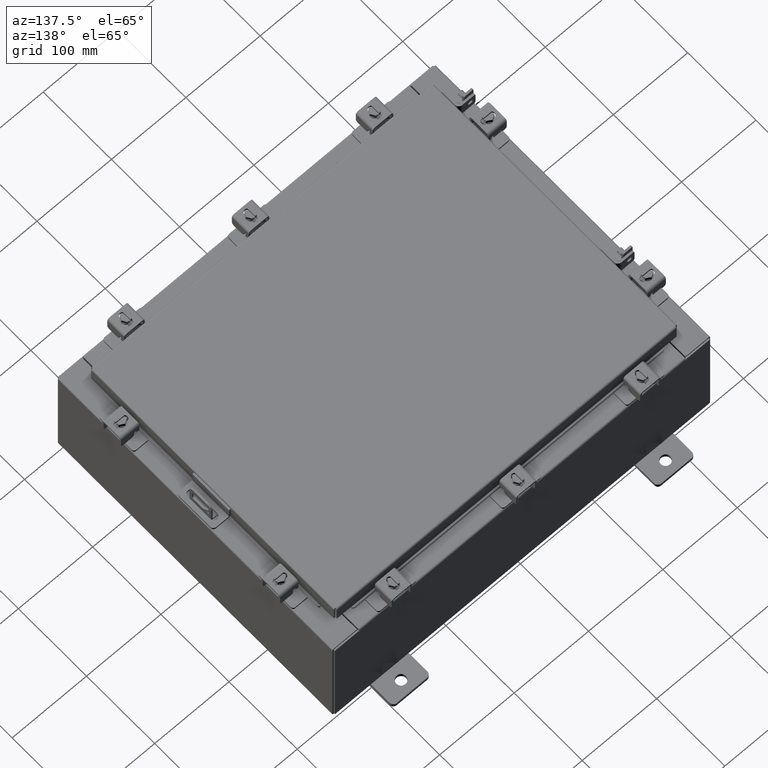
[diagram: clean part render]
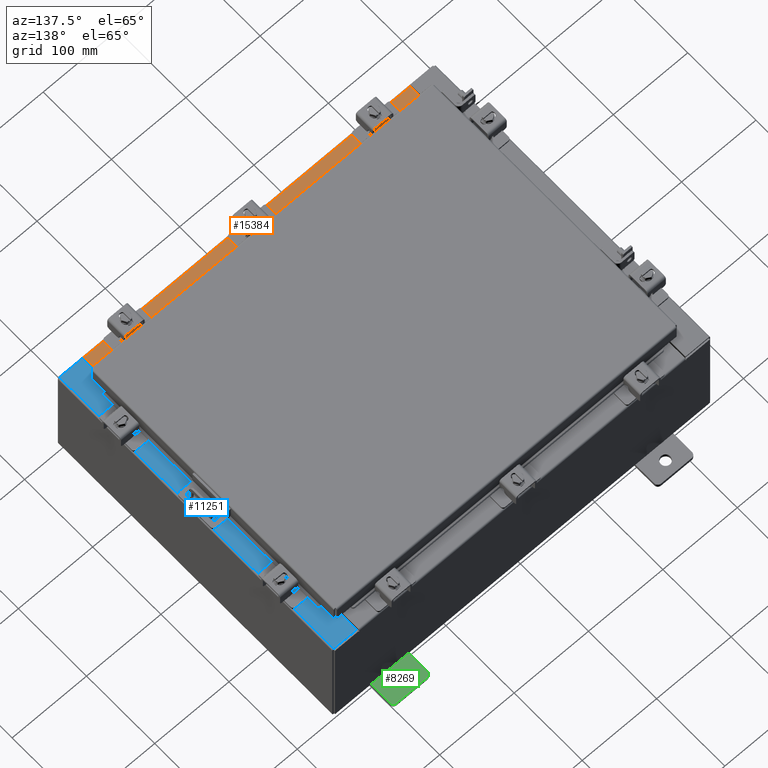
[diagram: same view with three faces highlighted in distinct colors, each labeled with its STEP entity id]
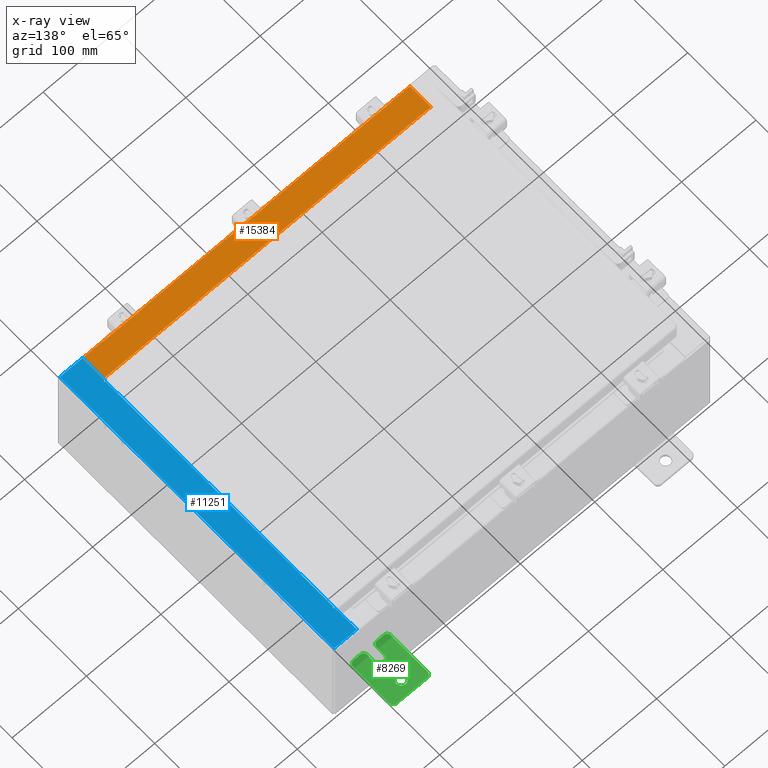
[diagram: x-ray of the same camera — body ghosted, the three highlighted faces saturated]
A machine part, auxiliary view with three faces highlighted in distinct colors.
The next image is the same camera in x-ray (body ghosted, the three faces saturated) — at least one of them is partly hidden behind the body in this view.
Their STEP definitions:

[orange] entity #15384 — the highlighted planar face has unit normal (-0, -0, 1).
#48 = LINE ( 'NONE', #16602, #16758 ) ;
#797 = VECTOR ( 'NONE', #15488, 39.37007874015748100 ) ;
#1387 = CARTESIAN_POINT ( 'NONE',  ( 8.637200000000000000, -1.300299999999999800, 3.000000000000005300 ) ) ;
#2095 = CARTESIAN_POINT ( 'NONE',  ( 8.637200000000000000, -1.287299999999999900, 3.000000000000005300 ) ) ;
#2882 = DIRECTION ( 'NONE',  ( 0.0000000000000000000, -1.000000000000000000, 3.566381192773190000E-015 ) ) ;
#3214 = ORIENTED_EDGE ( 'NONE', *, *, #4841, .F. ) ;
#3896 = CARTESIAN_POINT ( 'NONE',  ( 8.637200000000000000, -1.287299999999999900, 3.000000000000005300 ) ) ;
#4841 = EDGE_CURVE ( 'NONE', #17946, #7874, #4953, .T. ) ;
#4953 = LINE ( 'NONE', #1387, #797 ) ;
#5481 = DIRECTION ( 'NONE',  ( -1.000000000000000000, 0.0000000000000000000, 0.0000000000000000000 ) ) ;
#5600 = DIRECTION ( 'NONE',  ( -0.0000000000000000000, 1.000000000000000000, -3.566381192773190000E-015 ) ) ;
#5668 = VERTEX_POINT ( 'NONE', #10085 ) ;
#6180 = ORIENTED_EDGE ( 'NONE', *, *, #19631, .F. ) ;
#7874 = VERTEX_POINT ( 'NONE', #2095 ) ;
#7973 = EDGE_CURVE ( 'NONE', #17946, #11255, #9383, .T. ) ;
#8038 = VECTOR ( 'NONE', #5481, 39.37007874015748100 ) ;
#9383 = LINE ( 'NONE', #19596, #13561 ) ;
#10085 = CARTESIAN_POINT ( 'NONE',  ( -8.637200000000000000, -1.287299999999999200, 3.000000000000005300 ) ) ;
#10148 = DIRECTION ( 'NONE',  ( -1.000000000000000000, 3.162886113166609200E-017, -1.128005754888089100E-031 ) ) ;
#10791 = EDGE_LOOP ( 'NONE', ( #6180, #18004, #3214, #15085 ) ) ;
#11255 = VERTEX_POINT ( 'NONE', #15696 ) ;
#12258 = DIRECTION ( 'NONE',  ( 0.0000000000000000000, 3.566381192773190000E-015, 1.000000000000000000 ) ) ;
#12463 = EDGE_CURVE ( 'NONE', #7874, #5668, #17408, .T. ) ;
#13561 = VECTOR ( 'NONE', #10148, 39.37007874015748100 ) ;
#14986 = CARTESIAN_POINT ( 'NONE',  ( 8.637200000000000000, -0.08769999999999965300, 3.000000000000000900 ) ) ;
#15085 = ORIENTED_EDGE ( 'NONE', *, *, #7973, .T. ) ;
#15384 = ADVANCED_FACE ( 'NONE', ( #19758 ), #16947, .T. ) ;
#15488 = DIRECTION ( 'NONE',  ( -0.0000000000000000000, -1.000000000000000000, 3.566381192773190000E-015 ) ) ;
#15696 = CARTESIAN_POINT ( 'NONE',  ( -8.637200000000000000, -0.08770000000000000000, 3.000000000000000900 ) ) ;
#16602 = CARTESIAN_POINT ( 'NONE',  ( -8.637200000000000000, -0.07469999999999973900, 3.000000000000000900 ) ) ;
#16758 = VECTOR ( 'NONE', #5600, 39.37007874015748100 ) ;
#16947 = PLANE ( 'NONE',  #18465 ) ;
#17408 = LINE ( 'NONE', #3896, #8038 ) ;
#17946 = VERTEX_POINT ( 'NONE', #14986 ) ;
#18004 = ORIENTED_EDGE ( 'NONE', *, *, #12463, .F. ) ;
#18465 = AXIS2_PLACEMENT_3D ( 'NONE', #18555, #12258, #2882 ) ;
#18555 = CARTESIAN_POINT ( 'NONE',  ( 0.0000000000000000000, 1.069354855923099900E-014, 3.000000000000000900 ) ) ;
#19596 = CARTESIAN_POINT ( 'NONE',  ( -2.773851121247453900E-018, -0.08770000000000000000, 3.000000000000001300 ) ) ;
#19631 = EDGE_CURVE ( 'NONE', #5668, #11255, #48, .T. ) ;
#19758 = FACE_OUTER_BOUND ( 'NONE', #10791, .T. ) ;

[blue] entity #11251 — the highlighted planar face has unit normal (-0, 0, -1).
#390 = CARTESIAN_POINT ( 'NONE',  ( 9.912300000000019700, -7.925300000000000000, 5.925300000000001800 ) ) ;
#825 = ORIENTED_EDGE ( 'NONE', *, *, #1931, .F. ) ;
#1015 = CARTESIAN_POINT ( 'NONE',  ( 8.699700000000019500, 7.925300000000000000, 5.925300000000009800 ) ) ;
#1738 = AXIS2_PLACEMENT_3D ( 'NONE', #15791, #6398, #17382 ) ;
#1807 = CARTESIAN_POINT ( 'NONE',  ( 8.699700000000019500, -7.925300000000000900, 5.925300000000009800 ) ) ;
#1931 = EDGE_CURVE ( 'NONE', #12565, #3551, #8575, .T. ) ;
#2402 = VECTOR ( 'NONE', #15368, 39.37007874015748100 ) ;
#2822 = ORIENTED_EDGE ( 'NONE', *, *, #6764, .F. ) ;
#3064 = CARTESIAN_POINT ( 'NONE',  ( 8.750050000000021200, 6.593749999999999100, 5.925300000000009800 ) ) ;
#3110 = LINE ( 'NONE', #7553, #19326 ) ;
#3281 = CARTESIAN_POINT ( 'NONE',  ( 4.959073083586140300E-014, -7.925300000000008900, 5.925300000000072800 ) ) ;
#3360 = EDGE_LOOP ( 'NONE', ( #5927, #9369, #7102, #2822, #6788, #18088, #825, #5047, #4313, #15936, #15888, #4566 ) ) ;
#3367 = LINE ( 'NONE', #16964, #2402 ) ;
#3551 = VERTEX_POINT ( 'NONE', #14170 ) ;
#3744 = CARTESIAN_POINT ( 'NONE',  ( 8.712700000000021200, -6.593750000000002700, 5.925300000000011600 ) ) ;
#4211 = VERTEX_POINT ( 'NONE', #1015 ) ;
#4313 = ORIENTED_EDGE ( 'NONE', *, *, #13407, .F. ) ;
#4418 = LINE ( 'NONE', #3281, #16941 ) ;
#4523 = CARTESIAN_POINT ( 'NONE',  ( 8.712700000000021200, -6.593750000000000900, 5.925300000000011600 ) ) ;
#4566 = ORIENTED_EDGE ( 'NONE', *, *, #14072, .F. ) ;
#4682 = PLANE ( 'NONE',  #14540 ) ;
#4847 = DIRECTION ( 'NONE',  ( 1.000000000000000000, 8.915952981932975000E-016, -7.132762385546378400E-015 ) ) ;
#4896 = FACE_OUTER_BOUND ( 'NONE', #3360, .T. ) ;
#4975 = CARTESIAN_POINT ( 'NONE',  ( 8.750050000000021200, -6.612425000000000900, 5.925300000000011600 ) ) ;
#5037 = CARTESIAN_POINT ( 'NONE',  ( 8.750050000000021200, -6.593750000000000900, 5.925300000000011600 ) ) ;
#5047 = ORIENTED_EDGE ( 'NONE', *, *, #14518, .F. ) ;
#5461 = EDGE_CURVE ( 'NONE', #4211, #3551, #17220, .T. ) ;
#5927 = ORIENTED_EDGE ( 'NONE', *, *, #13912, .F. ) ;
#6022 = VECTOR ( 'NONE', #9741, 39.37007874015748100 ) ;
#6060 = EDGE_CURVE ( 'NONE', #7327, #18300, #4418, .T. ) ;
#6250 = DIRECTION ( 'NONE',  ( -1.000000000000000000, 0.0000000000000000000, 7.132762385546378400E-015 ) ) ;
#6398 = DIRECTION ( 'NONE',  ( 7.132762385546378400E-015, 0.0000000000000000000, 1.000000000000000000 ) ) ;
#6539 = DIRECTION ( 'NONE',  ( 1.000000000000000000, 0.0000000000000000000, 0.0000000000000000000 ) ) ;
#6688 = EDGE_CURVE ( 'NONE', #15476, #19839, #10167, .T. ) ;
#6764 = EDGE_CURVE ( 'NONE', #18280, #18300, #13370, .T. ) ;
#6788 = ORIENTED_EDGE ( 'NONE', *, *, #17153, .T. ) ;
#6873 = DIRECTION ( 'NONE',  ( -0.0000000000000000000, 1.000000000000000000, -0.0000000000000000000 ) ) ;
#7102 = ORIENTED_EDGE ( 'NONE', *, *, #6060, .T. ) ;
#7327 = VERTEX_POINT ( 'NONE', #1807 ) ;
#7553 = CARTESIAN_POINT ( 'NONE',  ( 8.699700000000019500, -6.631100000000002700, 5.925300000000009800 ) ) ;
#7747 = LINE ( 'NONE', #15831, #19345 ) ;
#7766 = CARTESIAN_POINT ( 'NONE',  ( 8.750050000000021200, -6.593750000000000900, 5.925300000000009800 ) ) ;
#8281 = DIRECTION ( 'NONE',  ( -0.0000000000000000000, -1.000000000000000000, -0.0000000000000000000 ) ) ;
#8467 = VECTOR ( 'NONE', #9795, 39.37007874015748100 ) ;
#8575 = LINE ( 'NONE', #17825, #15458 ) ;
#9369 = ORIENTED_EDGE ( 'NONE', *, *, #13236, .T. ) ;
#9444 = CIRCLE ( 'NONE', #1738, 0.01867500000000058700 ) ;
#9669 = VECTOR ( 'NONE', #8281, 39.37007874015748100 ) ;
#9741 = DIRECTION ( 'NONE',  ( -1.000000000000000000, 0.0000000000000000000, 0.0000000000000000000 ) ) ;
#9795 = DIRECTION ( 'NONE',  ( -1.000000000000000000, 0.0000000000000000000, 7.132762385546378400E-015 ) ) ;
#10167 = LINE ( 'NONE', #5037, #6022 ) ;
#10528 = VERTEX_POINT ( 'NONE', #3064 ) ;
#10989 = VERTEX_POINT ( 'NONE', #14946 ) ;
#11251 = ADVANCED_FACE ( 'NONE', ( #4896 ), #4682, .F. ) ;
#11418 = DIRECTION ( 'NONE',  ( -1.000000000000000000, 0.0000000000000000000, -2.170286390199955400E-014 ) ) ;
#12565 = VERTEX_POINT ( 'NONE', #13365 ) ;
#12586 = DIRECTION ( 'NONE',  ( 0.0000000000000000000, -1.000000000000000000, 0.0000000000000000000 ) ) ;
#12654 = LINE ( 'NONE', #12964, #8467 ) ;
#12964 = CARTESIAN_POINT ( 'NONE',  ( 4.252457061909005100E-014, 7.925300000000000000, 5.925300000000072800 ) ) ;
#13147 = CIRCLE ( 'NONE', #18710, 0.01867500000000058700 ) ;
#13236 = EDGE_CURVE ( 'NONE', #10989, #7327, #3367, .T. ) ;
#13365 = CARTESIAN_POINT ( 'NONE',  ( 8.750050000000021200, 6.631100000000000000, 5.925300000000009800 ) ) ;
#13370 = LINE ( 'NONE', #16135, #9669 ) ;
#13407 = EDGE_CURVE ( 'NONE', #19798, #10528, #7747, .T. ) ;
#13829 = CARTESIAN_POINT ( 'NONE',  ( 8.712700000000021200, 6.593750000000000000, 5.925300000000011600 ) ) ;
#13912 = EDGE_CURVE ( 'NONE', #10989, #19640, #3110, .T. ) ;
#14072 = EDGE_CURVE ( 'NONE', #19640, #15476, #13147, .T. ) ;
#14170 = CARTESIAN_POINT ( 'NONE',  ( 8.699700000000019500, 6.631099999999999100, 5.925300000000009800 ) ) ;
#14496 = CARTESIAN_POINT ( 'NONE',  ( 9.912300000000019700, 7.925300000000000000, 5.925300000000001800 ) ) ;
#14518 = EDGE_CURVE ( 'NONE', #10528, #12565, #9444, .T. ) ;
#14540 = AXIS2_PLACEMENT_3D ( 'NONE', #20353, #15630, #6250 ) ;
#14946 = CARTESIAN_POINT ( 'NONE',  ( 8.699700000000019500, -6.631100000000002700, 5.925300000000009800 ) ) ;
#15368 = DIRECTION ( 'NONE',  ( 0.0000000000000000000, -1.000000000000000000, 0.0000000000000000000 ) ) ;
#15458 = VECTOR ( 'NONE', #11418, 39.37007874015748100 ) ;
#15476 = VERTEX_POINT ( 'NONE', #7766 ) ;
#15630 = DIRECTION ( 'NONE',  ( -7.132762385546378400E-015, 0.0000000000000000000, -1.000000000000000000 ) ) ;
#15728 = CARTESIAN_POINT ( 'NONE',  ( 8.699700000000019500, 0.0000000000000000000, 5.925300000000009800 ) ) ;
#15791 = CARTESIAN_POINT ( 'NONE',  ( 8.750050000000021200, 6.612425000000000000, 5.925300000000011600 ) ) ;
#15831 = CARTESIAN_POINT ( 'NONE',  ( 8.712700000000021200, 6.593750000000000000, 5.925300000000011600 ) ) ;
#15888 = ORIENTED_EDGE ( 'NONE', *, *, #6688, .F. ) ;
#15928 = DIRECTION ( 'NONE',  ( 7.132762385546378400E-015, 0.0000000000000000000, 1.000000000000000000 ) ) ;
#15936 = ORIENTED_EDGE ( 'NONE', *, *, #16583, .F. ) ;
#16135 = CARTESIAN_POINT ( 'NONE',  ( 9.912300000000019700, -7.925300000000000000, 5.925300000000001800 ) ) ;
#16583 = EDGE_CURVE ( 'NONE', #19839, #19798, #18855, .T. ) ;
#16941 = VECTOR ( 'NONE', #4847, 39.37007874015748100 ) ;
#16964 = CARTESIAN_POINT ( 'NONE',  ( 8.699700000000019500, 0.0000000000000000000, 5.925300000000009800 ) ) ;
#17081 = DIRECTION ( 'NONE',  ( 1.000000000000000000, 2.170286390199955400E-014, 2.170286390199955400E-014 ) ) ;
#17153 = EDGE_CURVE ( 'NONE', #18280, #4211, #12654, .T. ) ;
#17220 = LINE ( 'NONE', #15728, #17710 ) ;
#17382 = DIRECTION ( 'NONE',  ( 1.000000000000000000, 0.0000000000000000000, 0.0000000000000000000 ) ) ;
#17416 = DIRECTION ( 'NONE',  ( 1.000000000000000000, 0.0000000000000000000, 0.0000000000000000000 ) ) ;
#17710 = VECTOR ( 'NONE', #12586, 39.37007874015748100 ) ;
#17825 = CARTESIAN_POINT ( 'NONE',  ( 8.750050000000021200, 6.631100000000000000, 5.925300000000011600 ) ) ;
#18088 = ORIENTED_EDGE ( 'NONE', *, *, #5461, .T. ) ;
#18183 = CARTESIAN_POINT ( 'NONE',  ( 8.750050000000021200, -6.631100000000000000, 5.925300000000009800 ) ) ;
#18280 = VERTEX_POINT ( 'NONE', #14496 ) ;
#18300 = VERTEX_POINT ( 'NONE', #390 ) ;
#18372 = VECTOR ( 'NONE', #6873, 39.37007874015748100 ) ;
#18710 = AXIS2_PLACEMENT_3D ( 'NONE', #4975, #15928, #6539 ) ;
#18855 = LINE ( 'NONE', #3744, #18372 ) ;
#19326 = VECTOR ( 'NONE', #17081, 39.37007874015748100 ) ;
#19345 = VECTOR ( 'NONE', #17416, 39.37007874015748100 ) ;
#19640 = VERTEX_POINT ( 'NONE', #18183 ) ;
#19798 = VERTEX_POINT ( 'NONE', #13829 ) ;
#19839 = VERTEX_POINT ( 'NONE', #4523 ) ;
#20353 = CARTESIAN_POINT ( 'NONE',  ( 4.252457061909005100E-014, 0.0000000000000000000, 5.925300000000072800 ) ) ;

[green] entity #8269 — the highlighted planar face has unit normal (0, 0, 1).
#347 = VERTEX_POINT ( 'NONE', #16632 ) ;
#418 = CARTESIAN_POINT ( 'NONE',  ( 0.0000000000000000000, 1.249999999999994200, -1.000000000000010400 ) ) ;
#478 = CIRCLE ( 'NONE', #15153, 0.2499999999999999200 ) ;
#540 = CARTESIAN_POINT ( 'NONE',  ( 0.0000000000000000000, -1.250000000000003100, 0.4400000000000020000 ) ) ;
#709 = DIRECTION ( 'NONE',  ( 0.0000000000000000000, 0.0000000000000000000, -1.000000000000000000 ) ) ;
#749 = ORIENTED_EDGE ( 'NONE', *, *, #2899, .T. ) ;
#840 = VERTEX_POINT ( 'NONE', #9257 ) ;
#1028 = EDGE_CURVE ( 'NONE', #1824, #840, #1240, .T. ) ;
#1116 = EDGE_CURVE ( 'NONE', #5923, #20027, #11279, .T. ) ;
#1240 = LINE ( 'NONE', #5263, #17431 ) ;
#1301 = DIRECTION ( 'NONE',  ( -5.163192708025533800E-017, 0.0000000000000000000, -1.000000000000000000 ) ) ;
#1318 = EDGE_CURVE ( 'NONE', #840, #5693, #478, .T. ) ;
#1512 = VERTEX_POINT ( 'NONE', #10180 ) ;
#1728 = DIRECTION ( 'NONE',  ( 1.000000000000000000, 0.0000000000000000000, -0.0000000000000000000 ) ) ;
#1824 = VERTEX_POINT ( 'NONE', #13052 ) ;
#2009 = CARTESIAN_POINT ( 'NONE',  ( 0.0000000000000000000, -1.060000000000003400, -0.4400000000000005000 ) ) ;
#2049 = AXIS2_PLACEMENT_3D ( 'NONE', #9507, #1728, #12681 ) ;
#2146 = AXIS2_PLACEMENT_3D ( 'NONE', #17036, #7575, #18627 ) ;
#2180 = VECTOR ( 'NONE', #5830, 39.37007874015748100 ) ;
#2322 = DIRECTION ( 'NONE',  ( 0.0000000000000000000, -1.000000000000000000, 1.639108796198558100E-015 ) ) ;
#2476 = VERTEX_POINT ( 'NONE', #13802 ) ;
#2514 = ORIENTED_EDGE ( 'NONE', *, *, #1318, .T. ) ;
#2528 = VECTOR ( 'NONE', #2322, 39.37007874015748100 ) ;
#2899 = EDGE_CURVE ( 'NONE', #17527, #347, #18874, .T. ) ;
#3055 = CIRCLE ( 'NONE', #4263, 0.2499999999999999200 ) ;
#3564 = DIRECTION ( 'NONE',  ( 0.0000000000000000000, 0.0000000000000000000, -1.000000000000000000 ) ) ;
#3760 = CARTESIAN_POINT ( 'NONE',  ( 0.0000000000000000000, 1.059999999999996300, 0.8099999999999938400 ) ) ;
#3802 = EDGE_CURVE ( 'NONE', #16024, #2476, #7154, .T. ) ;
#4042 = CARTESIAN_POINT ( 'NONE',  ( 4.780733988912460100E-016, -0.6249999999999993300, -0.2499999999999993900 ) ) ;
#4057 = EDGE_CURVE ( 'NONE', #14913, #20018, #4950, .T. ) ;
#4263 = AXIS2_PLACEMENT_3D ( 'NONE', #20117, #10688, #1301 ) ;
#4286 = ORIENTED_EDGE ( 'NONE', *, *, #9435, .T. ) ;
#4541 = ORIENTED_EDGE ( 'NONE', *, *, #3802, .T. ) ;
#4908 = ORIENTED_EDGE ( 'NONE', *, *, #9956, .T. ) ;
#4950 = CIRCLE ( 'NONE', #7206, 0.1900000000000011100 ) ;
#5136 = ORIENTED_EDGE ( 'NONE', *, *, #20241, .T. ) ;
#5263 = CARTESIAN_POINT ( 'NONE',  ( 6.829619984160658000E-017, -1.250000000000003800, 0.2500000000000005000 ) ) ;
#5323 = DIRECTION ( 'NONE',  ( 0.0000000000000000000, 0.0000000000000000000, -1.000000000000000000 ) ) ;
#5359 = CARTESIAN_POINT ( 'NONE',  ( 0.0000000000000000000, 1.249999999999997300, 0.8099999999999935000 ) ) ;
#5459 = FACE_BOUND ( 'NONE', #12533, .T. ) ;
#5693 = VERTEX_POINT ( 'NONE', #19541 ) ;
#5830 = DIRECTION ( 'NONE',  ( 0.0000000000000000000, -1.639108796198553600E-015, -1.000000000000000000 ) ) ;
#5923 = VERTEX_POINT ( 'NONE', #13709 ) ;
#6108 = CARTESIAN_POINT ( 'NONE',  ( 0.0000000000000000000, -1.250000000000002200, 0.9999999999999992200 ) ) ;
#6129 = DIRECTION ( 'NONE',  ( 1.000000000000000000, 0.0000000000000000000, -0.0000000000000000000 ) ) ;
#6847 = VERTEX_POINT ( 'NONE', #5359 ) ;
#6898 = CIRCLE ( 'NONE', #12955, 0.1900000000000011100 ) ;
#7025 = DIRECTION ( 'NONE',  ( -5.163192708025533800E-017, 0.0000000000000000000, -1.000000000000000000 ) ) ;
#7154 = LINE ( 'NONE', #11699, #2528 ) ;
#7206 = AXIS2_PLACEMENT_3D ( 'NONE', #15524, #6129, #17128 ) ;
#7209 = EDGE_LOOP ( 'NONE', ( #4541, #7994, #13989, #5136, #7574, #2514, #11051, #12018, #749, #7879, #4286, #8798, #4908, #17044 ) ) ;
#7422 = EDGE_CURVE ( 'NONE', #14451, #17527, #15050, .T. ) ;
#7574 = ORIENTED_EDGE ( 'NONE', *, *, #1028, .T. ) ;
#7575 = DIRECTION ( 'NONE',  ( 1.000000000000000000, 0.0000000000000000000, -0.0000000000000000000 ) ) ;
#7807 = CARTESIAN_POINT ( 'NONE',  ( 1.928684683526964400E-016, -1.060000000000003400, -0.2499999999999994400 ) ) ;
#7879 = ORIENTED_EDGE ( 'NONE', *, *, #13045, .T. ) ;
#7994 = ORIENTED_EDGE ( 'NONE', *, *, #17514, .T. ) ;
#8269 = ADVANCED_FACE ( 'NONE', ( #5459, #13305 ), #12622, .T. ) ;
#8272 = DIRECTION ( 'NONE',  ( 0.0000000000000000000, 1.639108796198553600E-015, 1.000000000000000000 ) ) ;
#8453 = DIRECTION ( 'NONE',  ( 1.000000000000000000, 0.0000000000000000000, -0.0000000000000000000 ) ) ;
#8798 = ORIENTED_EDGE ( 'NONE', *, *, #4057, .T. ) ;
#9257 = CARTESIAN_POINT ( 'NONE',  ( 0.0000000000000000000, -0.6249999999999992200, 0.2500000000000005000 ) ) ;
#9435 = EDGE_CURVE ( 'NONE', #18860, #14913, #12024, .T. ) ;
#9507 = CARTESIAN_POINT ( 'NONE',  ( 0.0000000000000000000, 0.0000000000000000000, 0.0000000000000000000 ) ) ;
#9880 = AXIS2_PLACEMENT_3D ( 'NONE', #2009, #12954, #3564 ) ;
#9956 = EDGE_CURVE ( 'NONE', #20018, #6847, #20231, .T. ) ;
#10063 = CIRCLE ( 'NONE', #15426, 0.1900000000000011400 ) ;
#10096 = DIRECTION ( 'NONE',  ( 1.000000000000000000, 0.0000000000000000000, -0.0000000000000000000 ) ) ;
#10153 = EDGE_CURVE ( 'NONE', #6847, #16024, #6898, .T. ) ;
#10180 = CARTESIAN_POINT ( 'NONE',  ( 0.0000000000000000000, -1.250000000000002400, 0.8099999999999980500 ) ) ;
#10614 = DIRECTION ( 'NONE',  ( -1.000000000000000000, 6.523827964459549700E-016, 5.163192708025532000E-017 ) ) ;
#10688 = DIRECTION ( 'NONE',  ( 1.000000000000000000, -0.0000000000000000000, -5.163192708025532000E-017 ) ) ;
#10845 = CARTESIAN_POINT ( 'NONE',  ( 0.0000000000000000000, 1.059999999999993400, -1.000000000000010000 ) ) ;
#10952 = DIRECTION ( 'NONE',  ( 1.000000000000000000, -0.0000000000000000000, -5.163192708025532000E-017 ) ) ;
#11051 = ORIENTED_EDGE ( 'NONE', *, *, #13735, .T. ) ;
#11078 = CARTESIAN_POINT ( 'NONE',  ( 0.0000000000000000000, 1.249999999999994700, -0.8100000000000092700 ) ) ;
#11279 = CIRCLE ( 'NONE', #19783, 0.2499999999999999200 ) ;
#11282 = VECTOR ( 'NONE', #12352, 39.37007874015748100 ) ;
#11461 = CIRCLE ( 'NONE', #18152, 0.1900000000000011100 ) ;
#11562 = CARTESIAN_POINT ( 'NONE',  ( 4.039428427013647300E-016, 0.6249999999999992200, -9.783840404509077400E-018 ) ) ;
#11699 = CARTESIAN_POINT ( 'NONE',  ( 0.0000000000000000000, 1.249999999999997600, 0.9999999999999951200 ) ) ;
#12018 = ORIENTED_EDGE ( 'NONE', *, *, #7422, .T. ) ;
#12024 = LINE ( 'NONE', #16144, #19418 ) ;
#12053 = EDGE_CURVE ( 'NONE', #1512, #13570, #19661, .T. ) ;
#12352 = DIRECTION ( 'NONE',  ( 0.0000000000000000000, -1.639108796198553600E-015, -1.000000000000000000 ) ) ;
#12533 = EDGE_LOOP ( 'NONE', ( #16480, #14224 ) ) ;
#12622 = PLANE ( 'NONE',  #2049 ) ;
#12681 = DIRECTION ( 'NONE',  ( -0.0000000000000000000, 0.0000000000000000000, -1.000000000000000000 ) ) ;
#12707 = CARTESIAN_POINT ( 'NONE',  ( 4.168508244714285900E-016, 0.6249999999999992200, 0.2499999999999999200 ) ) ;
#12954 = DIRECTION ( 'NONE',  ( 1.000000000000000000, 0.0000000000000000000, -0.0000000000000000000 ) ) ;
#12955 = AXIS2_PLACEMENT_3D ( 'NONE', #3760, #14707, #5323 ) ;
#13045 = EDGE_CURVE ( 'NONE', #347, #18860, #11461, .T. ) ;
#13052 = CARTESIAN_POINT ( 'NONE',  ( 1.928684683526972300E-016, -1.060000000000002100, 0.2500000000000005000 ) ) ;
#13055 = DIRECTION ( 'NONE',  ( 0.0000000000000000000, 1.000000000000000000, -1.639108796198558100E-015 ) ) ;
#13305 = FACE_OUTER_BOUND ( 'NONE', #7209, .T. ) ;
#13570 = VERTEX_POINT ( 'NONE', #540 ) ;
#13709 = CARTESIAN_POINT ( 'NONE',  ( 3.910348609313009100E-016, 0.6249999999999992200, -0.2499999999999999200 ) ) ;
#13735 = EDGE_CURVE ( 'NONE', #5693, #14451, #18615, .T. ) ;
#13802 = CARTESIAN_POINT ( 'NONE',  ( 0.0000000000000000000, -1.060000000000001200, 0.9999999999999988900 ) ) ;
#13989 = ORIENTED_EDGE ( 'NONE', *, *, #12053, .T. ) ;
#14111 = DIRECTION ( 'NONE',  ( -6.523827964459551700E-016, -1.000000000000000000, 0.0000000000000000000 ) ) ;
#14224 = ORIENTED_EDGE ( 'NONE', *, *, #16161, .F. ) ;
#14392 = VECTOR ( 'NONE', #19767, 39.37007874015748100 ) ;
#14451 = VERTEX_POINT ( 'NONE', #7807 ) ;
#14669 = CARTESIAN_POINT ( 'NONE',  ( 0.0000000000000000000, -1.060000000000004500, -1.000000000000006400 ) ) ;
#14707 = DIRECTION ( 'NONE',  ( 1.000000000000000000, 0.0000000000000000000, -0.0000000000000000000 ) ) ;
#14913 = VERTEX_POINT ( 'NONE', #10845 ) ;
#15050 = CIRCLE ( 'NONE', #9880, 0.1900000000000011100 ) ;
#15153 = AXIS2_PLACEMENT_3D ( 'NONE', #19578, #10614, #14111 ) ;
#15424 = CARTESIAN_POINT ( 'NONE',  ( 0.0000000000000000000, -1.250000000000004700, -0.4400000000000002200 ) ) ;
#15426 = AXIS2_PLACEMENT_3D ( 'NONE', #19549, #10096, #709 ) ;
#15524 = CARTESIAN_POINT ( 'NONE',  ( 0.0000000000000000000, 1.059999999999993600, -0.8100000000000089400 ) ) ;
#15998 = VECTOR ( 'NONE', #8272, 39.37007874015748100 ) ;
#16024 = VERTEX_POINT ( 'NONE', #18116 ) ;
#16144 = CARTESIAN_POINT ( 'NONE',  ( 0.0000000000000000000, -1.250000000000005600, -1.000000000000006200 ) ) ;
#16161 = EDGE_CURVE ( 'NONE', #20027, #5923, #3055, .T. ) ;
#16480 = ORIENTED_EDGE ( 'NONE', *, *, #1116, .F. ) ;
#16632 = CARTESIAN_POINT ( 'NONE',  ( 0.0000000000000000000, -1.250000000000005300, -0.8100000000000047200 ) ) ;
#17036 = CARTESIAN_POINT ( 'NONE',  ( 0.0000000000000000000, -1.060000000000001600, 0.8099999999999978300 ) ) ;
#17044 = ORIENTED_EDGE ( 'NONE', *, *, #10153, .T. ) ;
#17128 = DIRECTION ( 'NONE',  ( 0.0000000000000000000, 0.0000000000000000000, -1.000000000000000000 ) ) ;
#17431 = VECTOR ( 'NONE', #19365, 39.37007874015748100 ) ;
#17514 = EDGE_CURVE ( 'NONE', #2476, #1512, #19306, .T. ) ;
#17527 = VERTEX_POINT ( 'NONE', #15424 ) ;
#17888 = CARTESIAN_POINT ( 'NONE',  ( 0.0000000000000000000, -1.060000000000004100, -0.8100000000000050500 ) ) ;
#18116 = CARTESIAN_POINT ( 'NONE',  ( 0.0000000000000000000, 1.059999999999996500, 0.9999999999999953400 ) ) ;
#18152 = AXIS2_PLACEMENT_3D ( 'NONE', #17888, #8453, #19483 ) ;
#18417 = CARTESIAN_POINT ( 'NONE',  ( 0.0000000000000000000, -1.250000000000002200, 0.9999999999999992200 ) ) ;
#18615 = LINE ( 'NONE', #4042, #14392 ) ;
#18627 = DIRECTION ( 'NONE',  ( 0.0000000000000000000, 0.0000000000000000000, -1.000000000000000000 ) ) ;
#18860 = VERTEX_POINT ( 'NONE', #14669 ) ;
#18874 = LINE ( 'NONE', #18417, #2180 ) ;
#19306 = CIRCLE ( 'NONE', #2146, 0.1900000000000011100 ) ;
#19365 = DIRECTION ( 'NONE',  ( 6.556435184794182400E-016, 1.000000000000000000, 0.0000000000000000000 ) ) ;
#19418 = VECTOR ( 'NONE', #13055, 39.37007874015748100 ) ;
#19483 = DIRECTION ( 'NONE',  ( 0.0000000000000000000, 0.0000000000000000000, -1.000000000000000000 ) ) ;
#19541 = CARTESIAN_POINT ( 'NONE',  ( 4.780733988912460100E-016, -0.6249999999999993300, -0.2499999999999998600 ) ) ;
#19549 = CARTESIAN_POINT ( 'NONE',  ( 0.0000000000000000000, -1.060000000000002100, 0.4400000000000016700 ) ) ;
#19578 = CARTESIAN_POINT ( 'NONE',  ( 4.780733988912460100E-016, -0.6249999999999993300, 5.858939755051854500E-017 ) ) ;
#19661 = LINE ( 'NONE', #6108, #11282 ) ;
#19767 = DIRECTION ( 'NONE',  ( -6.556435184794182400E-016, -1.000000000000000000, -1.639108796198545600E-016 ) ) ;
#19783 = AXIS2_PLACEMENT_3D ( 'NONE', #11562, #10952, #7025 ) ;
#20018 = VERTEX_POINT ( 'NONE', #11078 ) ;
#20027 = VERTEX_POINT ( 'NONE', #12707 ) ;
#20117 = CARTESIAN_POINT ( 'NONE',  ( 4.039428427013647300E-016, 0.6249999999999992200, -9.783840404509077400E-018 ) ) ;
#20231 = LINE ( 'NONE', #418, #15998 ) ;
#20241 = EDGE_CURVE ( 'NONE', #13570, #1824, #10063, .T. ) ;